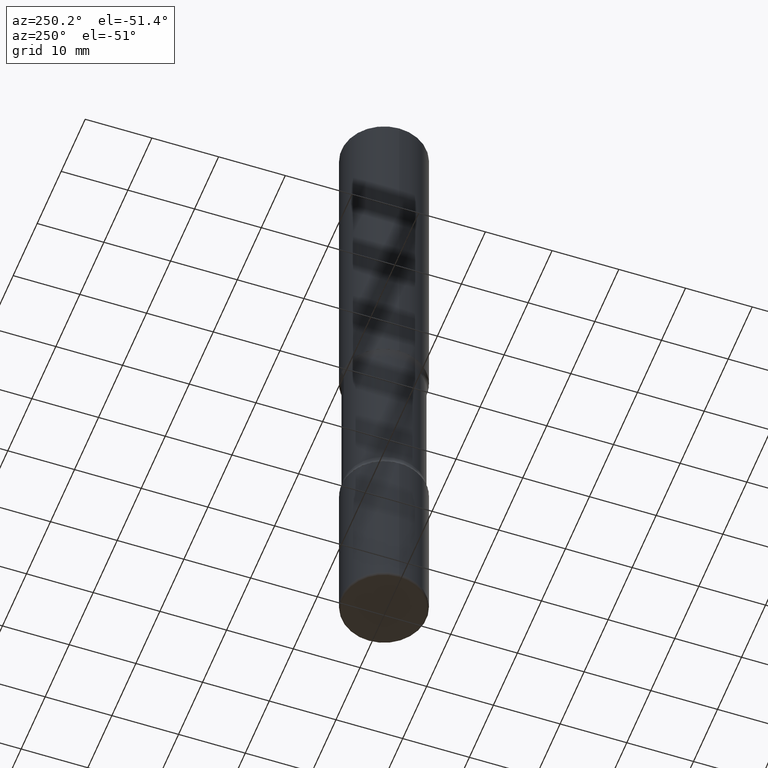
[diagram: clean part render]
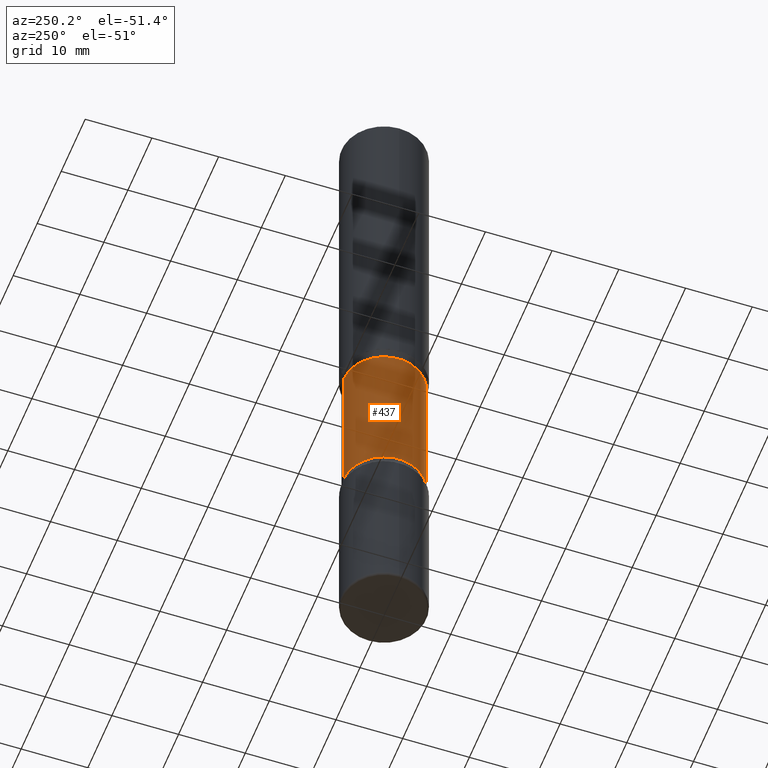
[diagram: same view with one face highlighted and labeled with its STEP entity id]
A machine part, auxiliary view. The second image highlights one B-rep face of the part: STEP entity #437.
In plain terms, the highlighted cylindrical surface (partial cylindrical patch) has radius 6.0325 mm, axis along (0, -0, -1).
Its self-contained STEP definition (entity closure, byte-faithful):
#8 = DIRECTION ( 'NONE',  ( 6.982962677686265133E-15, 1.000000000000000000, -2.300503573612010239E-15 ) ) ;
#46 = AXIS2_PLACEMENT_3D ( 'NONE', #93, #223, #302 ) ;
#50 = DIRECTION ( 'NONE',  ( 2.530378452311521502E-29, -3.369885892833230986E-15, -1.000000000000000000 ) ) ;
#84 = VERTEX_POINT ( 'NONE', #530 ) ;
#93 = CARTESIAN_POINT ( 'NONE',  ( 9.866784870866931853E-29, -1.384432990936266734E-14, -4.000000000000000000 ) ) ;
#139 = DIRECTION ( 'NONE',  ( 2.530378452311521502E-29, -3.369885892833230986E-15, -1.000000000000000000 ) ) ;
#151 = VERTEX_POINT ( 'NONE', #330 ) ;
#163 = CARTESIAN_POINT ( 'NONE',  ( 7.198535619023675570E-29, -1.029083161580289368E-14, -2.945513763205741320 ) ) ;
#172 = CARTESIAN_POINT ( 'NONE',  ( 1.658453635950538436E-15, 0.2374999999999928557, -2.054486236794259568 ) ) ;
#179 = ORIENTED_EDGE ( 'NONE', *, *, #314, .F. ) ;
#211 = EDGE_LOOP ( 'NONE', ( #179, #225, #421, #430 ) ) ;
#223 = DIRECTION ( 'NONE',  ( 2.530378452311521502E-29, -3.369885892833230986E-15, -1.000000000000000000 ) ) ;
#225 = ORIENTED_EDGE ( 'NONE', *, *, #393, .T. ) ;
#246 = VECTOR ( 'NONE', #553, 39.37007874015748143 ) ;
#250 = CARTESIAN_POINT ( 'NONE',  ( 1.658453635950560525E-15, 0.2374999999999897748, -2.945513763205741764 ) ) ;
#254 = CIRCLE ( 'NONE', #447, 0.2375000000000000722 ) ;
#264 = AXIS2_PLACEMENT_3D ( 'NONE', #516, #139, #495 ) ;
#297 = VERTEX_POINT ( 'NONE', #250 ) ;
#302 = DIRECTION ( 'NONE',  ( 6.982962677686265133E-15, 1.000000000000000000, -2.300503573612010239E-15 ) ) ;
#314 = EDGE_CURVE ( 'NONE', #84, #151, #388, .T. ) ;
#330 = CARTESIAN_POINT ( 'NONE',  ( -1.672246386956739071E-15, -0.2375000000000103417, -2.945513763205740876 ) ) ;
#342 = CIRCLE ( 'NONE', #264, 0.2375000000000001277 ) ;
#357 = CYLINDRICAL_SURFACE ( 'NONE', #46, 0.2375000000000000999 ) ;
#388 = LINE ( 'NONE', #432, #492 ) ;
#393 = EDGE_CURVE ( 'NONE', #84, #556, #342, .T. ) ;
#420 = CARTESIAN_POINT ( 'NONE',  ( 1.658453635950587543E-15, 0.2374999999999862776, -4.000000000000000888 ) ) ;
#421 = ORIENTED_EDGE ( 'NONE', *, *, #547, .T. ) ;
#430 = ORIENTED_EDGE ( 'NONE', *, *, #540, .F. ) ;
#431 = FACE_OUTER_BOUND ( 'NONE', #211, .T. ) ;
#432 = CARTESIAN_POINT ( 'NONE',  ( -1.629368274470640415E-15, -0.2375000000000139222, -3.999999999999999556 ) ) ;
#437 = ADVANCED_FACE ( 'NONE', ( #431 ), #357, .T. ) ;
#447 = AXIS2_PLACEMENT_3D ( 'NONE', #163, #50, #8 ) ;
#492 = VECTOR ( 'NONE', #557, 39.37007874015748143 ) ;
#495 = DIRECTION ( 'NONE',  ( 6.982962677686265133E-15, 1.000000000000000000, -3.450755360418014766E-15 ) ) ;
#516 = CARTESIAN_POINT ( 'NONE',  ( 4.943898765775623630E-29, -7.288170524422749615E-15, -2.054486236794258680 ) ) ;
#530 = CARTESIAN_POINT ( 'NONE',  ( -1.672246386956763723E-15, -0.2375000000000074274, -2.054486236794258236 ) ) ;
#540 = EDGE_CURVE ( 'NONE', #151, #297, #254, .T. ) ;
#547 = EDGE_CURVE ( 'NONE', #556, #297, #550, .T. ) ;
#550 = LINE ( 'NONE', #420, #246 ) ;
#553 = DIRECTION ( 'NONE',  ( 2.530378452311521502E-29, -3.369885892833230592E-15, -1.000000000000000000 ) ) ;
#556 = VERTEX_POINT ( 'NONE', #172 ) ;
#557 = DIRECTION ( 'NONE',  ( 2.530378452311521502E-29, -3.369885892833230592E-15, -1.000000000000000000 ) ) ;